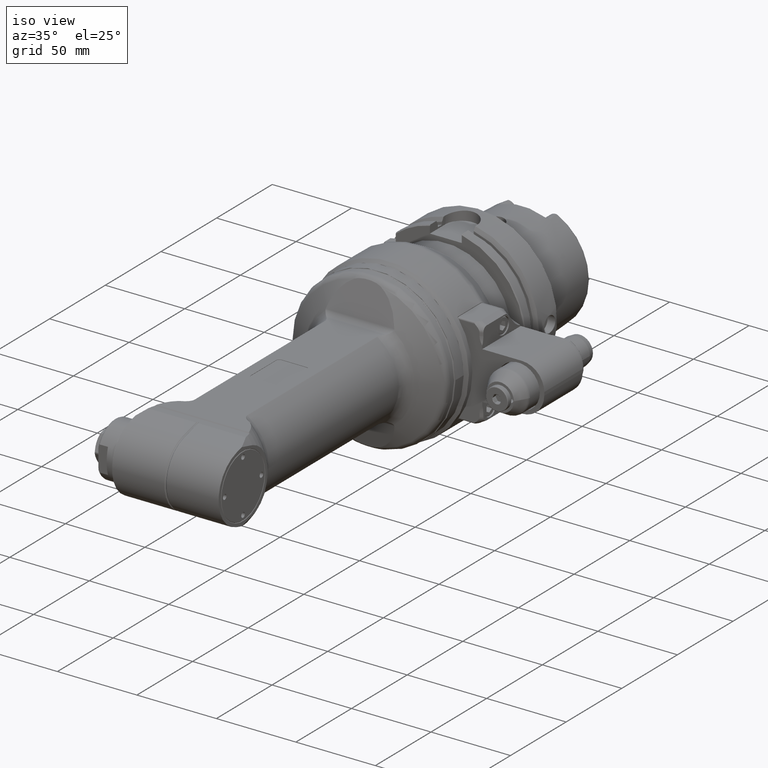
[diagram: clean part render]
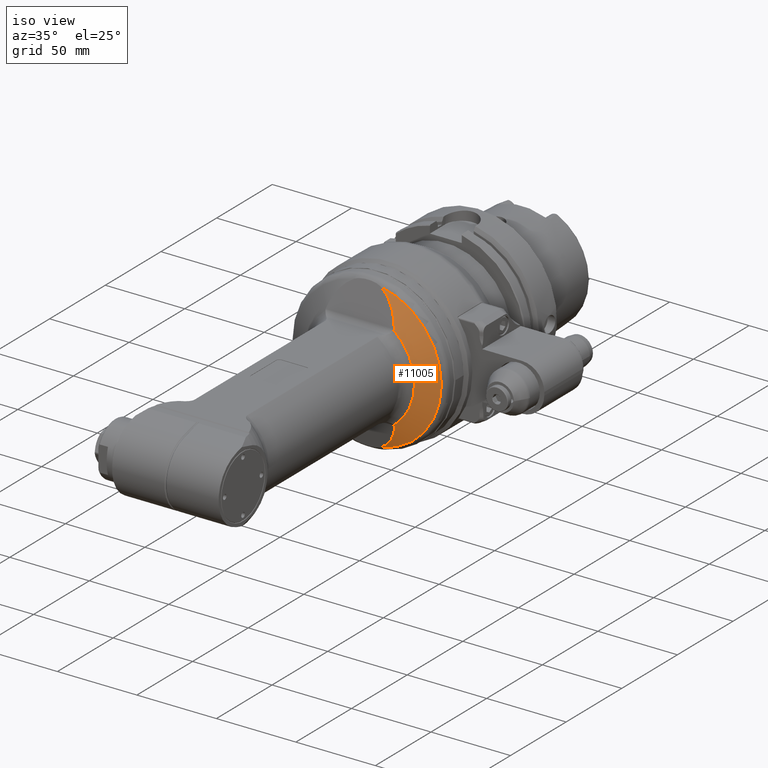
[diagram: same view with one face highlighted and labeled with its STEP entity id]
A machine part, iso view. The second image highlights one B-rep face of the part: STEP entity #11005.
In plain terms, the highlighted conical surface has half-angle 60 deg.
Its self-contained STEP definition (entity closure, byte-faithful):
#33=ELLIPSE('',#11686,31.1727494163443,22.7387822282697);
#42=ELLIPSE('',#11816,31.1727494163443,22.7387822282698);
#55=B_SPLINE_CURVE_WITH_KNOTS('',3,(#16313,#16314,#16315,#16316,#16317,
#16318,#16319,#16320),.UNSPECIFIED.,.F.,.F.,(4,2,2,4),(2.18673200160695,
2.19364969071324,2.22722554832336,2.26058373672803),.UNSPECIFIED.);
#68=B_SPLINE_CURVE_WITH_KNOTS('',3,(#16794,#16795,#16796,#16797,#16798,
#16799,#16800,#16801),.UNSPECIFIED.,.F.,.F.,(4,2,2,4),(-0.116988622892112,
-0.0975331967103408,-0.0650221311402266,-0.0418387464817694),
 .UNSPECIFIED.);
#417=CONICAL_SURFACE('',#11815,40.5,1.0471975511966);
#906=CIRCLE('',#11814,34.5);
#907=CIRCLE('',#11817,46.5);
#1412=FACE_OUTER_BOUND('',#2043,.T.);
#2043=EDGE_LOOP('',(#7866,#7867,#7868,#7869,#7870,#7871));
#4500=VERTEX_POINT('',#16280);
#4503=VERTEX_POINT('',#16302);
#4504=VERTEX_POINT('',#16322);
#4592=VERTEX_POINT('',#16780);
#4593=VERTEX_POINT('',#16793);
#4594=VERTEX_POINT('',#16802);
#5742=EDGE_CURVE('',#4500,#4503,#55,.T.);
#5743=EDGE_CURVE('',#4500,#4504,#33,.T.);
#5889=EDGE_CURVE('',#4592,#4503,#906,.T.);
#5890=EDGE_CURVE('',#4593,#4592,#68,.T.);
#5891=EDGE_CURVE('',#4594,#4593,#42,.T.);
#5892=EDGE_CURVE('',#4504,#4594,#907,.T.);
#7866=ORIENTED_EDGE('',*,*,#5743,.F.);
#7867=ORIENTED_EDGE('',*,*,#5742,.T.);
#7868=ORIENTED_EDGE('',*,*,#5889,.F.);
#7869=ORIENTED_EDGE('',*,*,#5890,.F.);
#7870=ORIENTED_EDGE('',*,*,#5891,.F.);
#7871=ORIENTED_EDGE('',*,*,#5892,.F.);
#11005=ADVANCED_FACE('',(#1412),#417,.T.);
#11686=AXIS2_PLACEMENT_3D('',#16323,#13016,#13017);
#11814=AXIS2_PLACEMENT_3D('',#16791,#13314,#13315);
#11815=AXIS2_PLACEMENT_3D('',#16792,#13316,#13317);
#11816=AXIS2_PLACEMENT_3D('',#16803,#13318,#13319);
#11817=AXIS2_PLACEMENT_3D('',#16804,#13320,#13321);
#13016=DIRECTION('center_axis',(0.939692620785897,0.,0.342020143325699));
#13017=DIRECTION('ref_axis',(0.342020143325699,4.48526230226004E-15,-0.939692620785897));
#13314=DIRECTION('center_axis',(1.,0.,0.));
#13315=DIRECTION('ref_axis',(0.,0.624664511072217,-0.780893237649621));
#13316=DIRECTION('center_axis',(-1.,0.,0.));
#13317=DIRECTION('ref_axis',(0.,1.,0.));
#13318=DIRECTION('center_axis',(0.939692620785897,0.,-0.342020143325699));
#13319=DIRECTION('ref_axis',(-0.342020143325699,7.39186362644738E-16,-0.939692620785897));
#13320=DIRECTION('center_axis',(-1.,0.,0.));
#13321=DIRECTION('ref_axis',(0.,0.177495530843392,0.984121606576455));
#16280=CARTESIAN_POINT('',(27.04205971436,21.59708585293,27.6319194267));
#16302=CARTESIAN_POINT('',(27.37157894791,21.55092563191,26.94081669898));
#16313=CARTESIAN_POINT('Ctrl Pts',(27.0420597143565,21.5970858529229,27.6319194266969));
#16314=CARTESIAN_POINT('Ctrl Pts',(27.050335084464,21.6028999944633,27.609183034189));
#16315=CARTESIAN_POINT('Ctrl Pts',(27.0588934682952,21.608065250833,27.5863128476503));
#16316=CARTESIAN_POINT('Ctrl Pts',(27.1104686239072,21.6342180863404,27.4522888820599));
#16317=CARTESIAN_POINT('Ctrl Pts',(27.1596369835571,21.6383299644524,27.3404435454438));
#16318=CARTESIAN_POINT('Ctrl Pts',(27.2573525851501,21.617390153981,27.1409621841659));
#16319=CARTESIAN_POINT('Ctrl Pts',(27.3132347012754,21.5912369054553,27.0379800163916));
#16320=CARTESIAN_POINT('Ctrl Pts',(27.3715789479091,21.5509256318965,26.940816698985));
#16322=CARTESIAN_POINT('',(20.44337571763,8.253542184218,45.7616547058));
#16323=CARTESIAN_POINT('Origin',(30.377955770746,-1.77635683940025E-14,
18.4666203381165));
#16780=CARTESIAN_POINT('',(27.37157894782,21.55092563201,-26.9408166991));
#16791=CARTESIAN_POINT('Origin',(27.37157894791,0.,0.));
#16792=CARTESIAN_POINT('Origin',(23.90747733277,0.,0.));
#16793=CARTESIAN_POINT('',(27.04205971436,21.59708585293,-27.6319194267));
#16794=CARTESIAN_POINT('Ctrl Pts',(27.0420597143565,21.5970858529229,-27.6319194266969));
#16795=CARTESIAN_POINT('Ctrl Pts',(27.0639668786932,21.6124774731827,-27.5717299873576));
#16796=CARTESIAN_POINT('Ctrl Pts',(27.0879226423856,21.623328103464,-27.5104535586471));
#16797=CARTESIAN_POINT('Ctrl Pts',(27.1568615748489,21.6383969971774,-27.3465592802232));
#16798=CARTESIAN_POINT('Ctrl Pts',(27.2052684673191,21.6330294345333,-27.2437727305676));
#16799=CARTESIAN_POINT('Ctrl Pts',(27.2937218906196,21.5993216748308,-27.0747738811996));
#16800=CARTESIAN_POINT('Ctrl Pts',(27.332263070152,21.5780898030782,-27.0062912115615));
#16801=CARTESIAN_POINT('Ctrl Pts',(27.3715789478246,21.5509256319549,-26.9408166991256));
#16802=CARTESIAN_POINT('',(20.44337571763,8.253542184217,-45.76165470581));
#16803=CARTESIAN_POINT('Origin',(30.377955770746,0.,-18.4666203381165));
#16804=CARTESIAN_POINT('Origin',(20.44337571763,0.,0.));